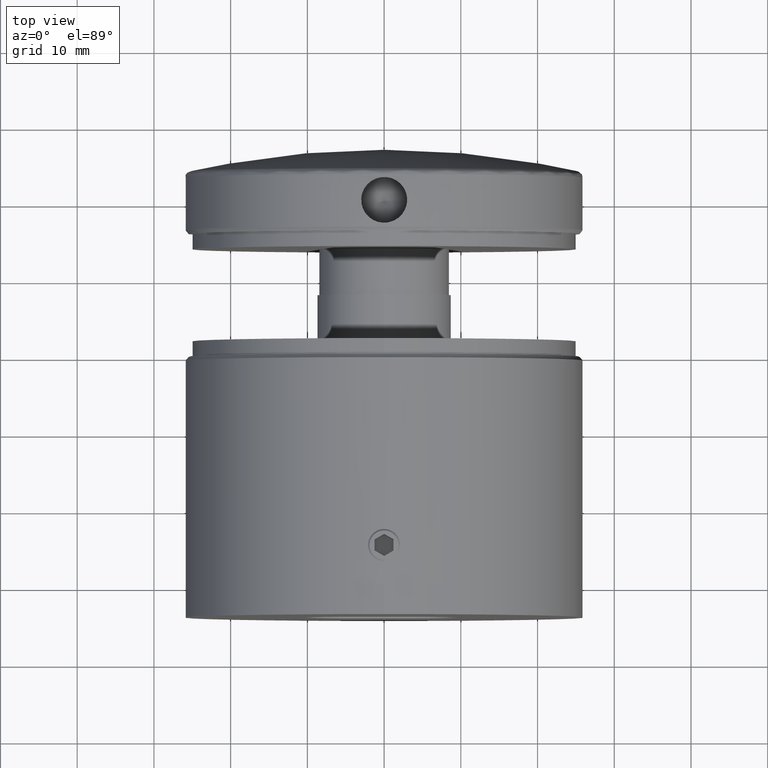
[diagram: clean part render]
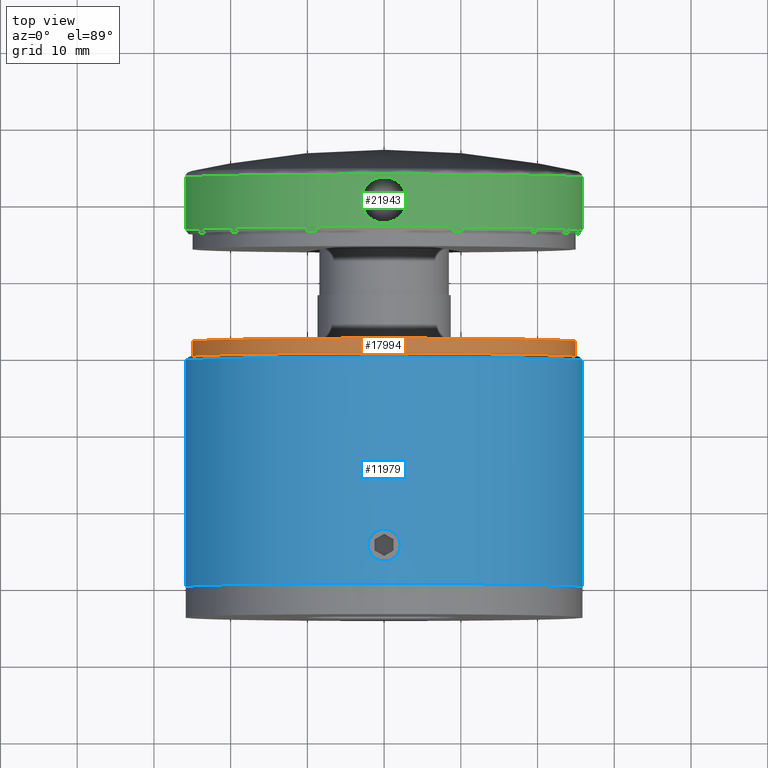
[diagram: same view with three faces highlighted in distinct colors, each labeled with its STEP entity id]
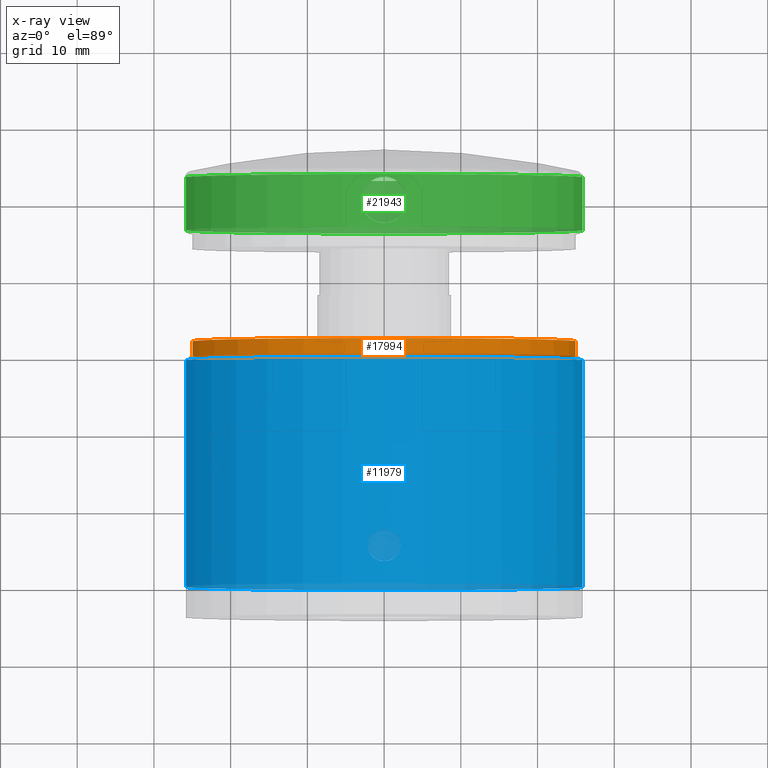
[diagram: x-ray of the same camera — body ghosted, the three highlighted faces saturated]
A machine part, top view with three faces highlighted in distinct colors.
The next image is the same camera in x-ray (body ghosted, the three faces saturated) — at least one of them is partly hidden behind the body in this view.
Their STEP definitions:

[orange] entity #17994 — the highlighted cylindrical surface (bore or boss wall) has radius 25 mm, axis along (-0, -1, -0).
#542 = ORIENTED_EDGE ( 'NONE', *, *, #3095, .F. ) ;
#943 = DIRECTION ( 'NONE',  ( 0.0000000000000000000, 1.000000000000000000, 0.0000000000000000000 ) ) ;
#1526 = AXIS2_PLACEMENT_3D ( 'NONE', #16479, #16559, #21999 ) ;
#1536 = DIRECTION ( 'NONE',  ( 0.0000000000000000000, 0.0000000000000000000, 1.000000000000000000 ) ) ;
#3095 = EDGE_CURVE ( 'NONE', #11665, #11665, #6065, .T. ) ;
#5273 = EDGE_LOOP ( 'NONE', ( #542 ) ) ;
#6065 = CIRCLE ( 'NONE', #11484, 25.00000000000000000 ) ;
#7245 = CARTESIAN_POINT ( 'NONE',  ( 0.0000000000000000000, 2.000000000000000000, 25.00000000000000000 ) ) ;
#8256 = CARTESIAN_POINT ( 'NONE',  ( 0.0000000000000000000, 2.000000000000000000, 0.0000000000000000000 ) ) ;
#9722 = EDGE_CURVE ( 'NONE', #18397, #18397, #16997, .T. ) ;
#10079 = DIRECTION ( 'NONE',  ( 0.0000000000000000000, 1.000000000000000000, 0.0000000000000000000 ) ) ;
#11484 = AXIS2_PLACEMENT_3D ( 'NONE', #8256, #10079, #1536 ) ;
#11665 = VERTEX_POINT ( 'NONE', #7245 ) ;
#13028 = DIRECTION ( 'NONE',  ( 0.0000000000000000000, 0.0000000000000000000, 1.000000000000000000 ) ) ;
#14742 = ORIENTED_EDGE ( 'NONE', *, *, #9722, .T. ) ;
#15211 = AXIS2_PLACEMENT_3D ( 'NONE', #21643, #943, #13028 ) ;
#16479 = CARTESIAN_POINT ( 'NONE',  ( 0.0000000000000000000, 2.000000000000000000, 0.0000000000000000000 ) ) ;
#16559 = DIRECTION ( 'NONE',  ( -0.0000000000000000000, -1.000000000000000000, -0.0000000000000000000 ) ) ;
#16997 = CIRCLE ( 'NONE', #15211, 25.00000000000000000 ) ;
#17994 = ADVANCED_FACE ( 'NONE', ( #18764, #21474 ), #18501, .T. ) ;
#18397 = VERTEX_POINT ( 'NONE', #19574 ) ;
#18501 = CYLINDRICAL_SURFACE ( 'NONE', #1526, 25.00000000000000000 ) ;
#18764 = FACE_OUTER_BOUND ( 'NONE', #5273, .T. ) ;
#19574 = CARTESIAN_POINT ( 'NONE',  ( 0.0000000000000000000, 0.0000000000000000000, 25.00000000000000000 ) ) ;
#19702 = EDGE_LOOP ( 'NONE', ( #14742 ) ) ;
#21474 = FACE_OUTER_BOUND ( 'NONE', #19702, .T. ) ;
#21643 = CARTESIAN_POINT ( 'NONE',  ( 0.0000000000000000000, 0.0000000000000000000, 0.0000000000000000000 ) ) ;
#21999 = DIRECTION ( 'NONE',  ( 0.0000000000000000000, 0.0000000000000000000, -1.000000000000000000 ) ) ;

[blue] entity #11979 — the highlighted cylindrical surface (bore or boss wall) has radius 26 mm, axis along (-0, -1, -0).
#62 = VERTEX_POINT ( 'NONE', #9843 ) ;
#746 = CARTESIAN_POINT ( 'NONE',  ( 0.5515874303148203800, 7.044642474720950200, 25.99537749868886000 ) ) ;
#821 = CARTESIAN_POINT ( 'NONE',  ( -2.100099286971191900, 4.726618426426298900, 25.91504549474712600 ) ) ;
#1050 = CARTESIAN_POINT ( 'NONE',  ( -1.389649238057018200, 3.419615088910952200, 25.96301712609206500 ) ) ;
#2244 = CARTESIAN_POINT ( 'NONE',  ( 1.887173869133903700, 5.931406873373773300, 25.93147448498230600 ) ) ;
#2536 = CARTESIAN_POINT ( 'NONE',  ( 0.0000000000000000000, 20.00000000000000000, 0.0000000000000000000 ) ) ;
#2554 = CARTESIAN_POINT ( 'NONE',  ( -0.6790218126945848400, 3.008054272391163900, 25.99144236514335300 ) ) ;
#3857 = CARTESIAN_POINT ( 'NONE',  ( 2.033000561372071400, 5.543727166053645100, 25.92040943783972700 ) ) ;
#4139 = CARTESIAN_POINT ( 'NONE',  ( 1.822668037246453000, 6.052002593627194400, 25.93614684694555500 ) ) ;
#4215 = CARTESIAN_POINT ( 'NONE',  ( 1.056914456920366600, 6.835141240740624000, 25.97973887134691000 ) ) ;
#4298 = CARTESIAN_POINT ( 'NONE',  ( 0.2734311670305149000, 2.913385292999100900, 25.99890881711472400 ) ) ;
#4376 = CARTESIAN_POINT ( 'NONE',  ( -0.2750556725704311200, 7.086433002506038500, 25.99889400044466500 ) ) ;
#4447 = CARTESIAN_POINT ( 'NONE',  ( -1.281745290530080100, 3.330877281822141700, 25.96863823481467300 ) ) ;
#4508 = CYLINDRICAL_SURFACE ( 'NONE', #6998, 25.99999999999999600 ) ;
#4526 = CARTESIAN_POINT ( 'NONE',  ( 1.886697760890792200, 4.067757889768828700, 25.93150866998944400 ) ) ;
#4837 = AXIS2_PLACEMENT_3D ( 'NONE', #15996, #5680, #12697 ) ;
#5680 = DIRECTION ( 'NONE',  ( -0.0000000000000000000, -1.000000000000000000, -0.0000000000000000000 ) ) ;
#5796 = CARTESIAN_POINT ( 'NONE',  ( 2.099999999999997000, 4.999999999999999100, 25.91505354036529600 ) ) ;
#5896 = CARTESIAN_POINT ( 'NONE',  ( 2.086375087508013600, 5.275262616186469500, 25.91616784368428800 ) ) ;
#5910 = EDGE_LOOP ( 'NONE', ( #15684 ) ) ;
#5968 = CARTESIAN_POINT ( 'NONE',  ( -1.836053107001190300, 3.944660372366392200, 25.93530218829718900 ) ) ;
#6042 = CARTESIAN_POINT ( 'NONE',  ( -1.821364900916784900, 6.054199029801260700, 25.93623799503714300 ) ) ;
#6185 = CARTESIAN_POINT ( 'NONE',  ( 1.580685245242186900, 3.610684475793076900, 25.95208780489046400 ) ) ;
#6311 = DIRECTION ( 'NONE',  ( 0.0000000000000000000, 0.0000000000000000000, -1.000000000000000000 ) ) ;
#6445 = CARTESIAN_POINT ( 'NONE',  ( 0.0000000000000000000, 0.0000000000000000000, -25.99999999999999600 ) ) ;
#6492 = EDGE_LOOP ( 'NONE', ( #21267 ) ) ;
#6775 = DIRECTION ( 'NONE',  ( -0.0000000000000000000, -1.000000000000000000, -0.0000000000000000000 ) ) ;
#6998 = AXIS2_PLACEMENT_3D ( 'NONE', #2536, #19726, #6311 ) ;
#7394 = B_SPLINE_CURVE_WITH_KNOTS ( 'NONE', 3,
 ( #21210, #17882, #5896, #3857, #14491, #2244, #4139, #17950, #7631, #19670, #4215, #746, #14712, #18110, #4376, #16281, #21516, #18255, #14791, #16355, #7858, #19748, #16435, #6042, #9449, #11392, #8003, #11171, #7932, #821, #7782, #5968, #12980, #1050, #4447, #19907, #12903, #2554, #16515, #21667, #14644, #13053, #4298, #19824, #14569, #11319, #18036, #14862, #9524, #6185, #13129, #21595, #4526, #19984, #9374, #11246 ),
 .UNSPECIFIED., .T., .F.,
 ( 4, 2, 2, 2, 2, 2, 2, 2, 2, 2, 2, 2, 2, 2, 2, 2, 2, 2, 2, 2, 2, 2, 2, 2, 2, 2, 2, 4 ),
 ( 0.0000000000000000000, 0.0004104668921315337500, 0.0008209337842630675000, 0.001231400676394601300, 0.001641867568526135000, 0.002462801352789200300, 0.003283735137052265700, 0.003694202029183798300, 0.004104668921315331000, 0.004515135813446864500, 0.004925602705578397200, 0.005336069597709930700, 0.005746536489841463400, 0.006157003381972996900, 0.006567470274104529600, 0.007388404058367594900, 0.008209337842630660300, 0.008619804734762193800, 0.009030271626893727300, 0.009440738519025257400, 0.009851205411156790900, 0.01026167230328832400, 0.01067213919541985500, 0.01108260608755138800, 0.01149307297968292000, 0.01190353987181445200, 0.01231400676394598500, 0.01313494054820905100 ),
 .UNSPECIFIED. ) ;
#7631 = CARTESIAN_POINT ( 'NONE',  ( 1.581614341408797300, 6.388252919398745200, 25.95203081882499400 ) ) ;
#7782 = CARTESIAN_POINT ( 'NONE',  ( -2.045140482374243200, 4.450242645582057400, 25.91965260217380900 ) ) ;
#7858 = CARTESIAN_POINT ( 'NONE',  ( -1.386172949092684000, 6.583584830614483100, 25.96320806522044600 ) ) ;
#7932 = CARTESIAN_POINT ( 'NONE',  ( -2.099950149348869000, 5.137833215250493500, 25.91505757996182900 ) ) ;
#8003 = CARTESIAN_POINT ( 'NONE',  ( -2.032362703583654000, 5.546201311504011000, 25.92045968014364000 ) ) ;
#8025 = FACE_OUTER_BOUND ( 'NONE', #5910, .T. ) ;
#8865 = FACE_BOUND ( 'NONE', #6492, .T. ) ;
#9374 = CARTESIAN_POINT ( 'NONE',  ( 2.099999999999997900, 4.722406654280078400, 25.91505354036531000 ) ) ;
#9449 = CARTESIAN_POINT ( 'NONE',  ( -1.887148706429960100, 5.931464451664375300, 25.93147635339588000 ) ) ;
#9524 = CARTESIAN_POINT ( 'NONE',  ( 1.386813373150778100, 3.417119038468505300, 25.96316960514107200 ) ) ;
#9843 = CARTESIAN_POINT ( 'NONE',  ( 0.0000000000000000000, 29.50000000000000000, -25.99999999999999300 ) ) ;
#10062 = VERTEX_POINT ( 'NONE', #6445 ) ;
#10784 = AXIS2_PLACEMENT_3D ( 'NONE', #17108, #6775, #20572 ) ;
#11171 = CARTESIAN_POINT ( 'NONE',  ( -2.086163109703135500, 5.277051459697118800, 25.91618512953988300 ) ) ;
#11246 = CARTESIAN_POINT ( 'NONE',  ( 2.099999999999997400, 4.999999999999999100, 25.91505354036530300 ) ) ;
#11319 = CARTESIAN_POINT ( 'NONE',  ( 0.9297566643219388200, 3.112005147232632200, 25.98368275802765500 ) ) ;
#11392 = CARTESIAN_POINT ( 'NONE',  ( -1.992610389370325500, 5.677096818090381800, 25.92358578482312800 ) ) ;
#11651 = EDGE_CURVE ( 'NONE', #14637, #14637, #7394, .T. ) ;
#11979 = ADVANCED_FACE ( 'NONE', ( #8865, #8025, #18018 ), #4508, .T. ) ;
#12697 = DIRECTION ( 'NONE',  ( 0.0000000000000000000, 0.0000000000000000000, -1.000000000000000000 ) ) ;
#12832 = CIRCLE ( 'NONE', #10784, 25.99999999999999300 ) ;
#12903 = CARTESIAN_POINT ( 'NONE',  ( -0.9330401142055890800, 3.113639867592257600, 25.98356370839009700 ) ) ;
#12980 = CARTESIAN_POINT ( 'NONE',  ( -1.679776207148330200, 3.710303220900370100, 25.94640408750757000 ) ) ;
#13053 = CARTESIAN_POINT ( 'NONE',  ( 0.1365899693063367100, 2.899865480402195100, 26.00001086503926100 ) ) ;
#13129 = CARTESIAN_POINT ( 'NONE',  ( 1.667657756521175000, 3.716275343818325400, 25.94657670989814900 ) ) ;
#13827 = ORIENTED_EDGE ( 'NONE', *, *, #16705, .F. ) ;
#14491 = CARTESIAN_POINT ( 'NONE',  ( 1.992599160042153800, 5.677120789452698300, 25.92358661074948100 ) ) ;
#14569 = CARTESIAN_POINT ( 'NONE',  ( 0.6751850539863092400, 3.006737056532522000, 25.99154366842317300 ) ) ;
#14637 = VERTEX_POINT ( 'NONE', #5796 ) ;
#14644 = CARTESIAN_POINT ( 'NONE',  ( -0.1406954558784135600, 2.900136526148288800, 25.99998897289323100 ) ) ;
#14712 = CARTESIAN_POINT ( 'NONE',  ( 0.2751650311658658300, 7.099851416639489300, 25.99998799903801900 ) ) ;
#14791 = CARTESIAN_POINT ( 'NONE',  ( -1.052589253394152300, 6.822297977980116300, 25.97893422021398300 ) ) ;
#14862 = CARTESIAN_POINT ( 'NONE',  ( 1.278680393590565100, 3.328537484212546400, 25.96878950722395300 ) ) ;
#15684 = ORIENTED_EDGE ( 'NONE', *, *, #18199, .T. ) ;
#15996 = CARTESIAN_POINT ( 'NONE',  ( 0.0000000000000000000, 0.0000000000000000000, 0.0000000000000000000 ) ) ;
#16281 = CARTESIAN_POINT ( 'NONE',  ( -0.5444280021912952800, 7.032844422819789700, 25.99464835345537800 ) ) ;
#16355 = CARTESIAN_POINT ( 'NONE',  ( -1.280108565136260700, 6.670340120567080300, 25.96871751581180000 ) ) ;
#16435 = CARTESIAN_POINT ( 'NONE',  ( -1.669243227214097600, 6.281535307795066600, 25.94647256345069800 ) ) ;
#16515 = CARTESIAN_POINT ( 'NONE',  ( -0.5455399143232699800, 2.967483908508076900, 25.99462266377991100 ) ) ;
#16705 = EDGE_CURVE ( 'NONE', #10062, #10062, #18810, .T. ) ;
#17108 = CARTESIAN_POINT ( 'NONE',  ( 0.0000000000000000000, 29.50000000000000000, 0.0000000000000000000 ) ) ;
#17882 = CARTESIAN_POINT ( 'NONE',  ( 2.099999999999997000, 5.138796672859960800, 25.91505354036530000 ) ) ;
#17950 = CARTESIAN_POINT ( 'NONE',  ( 1.670277411755914700, 6.280234977953711900, 25.94640640643906700 ) ) ;
#18003 = EDGE_LOOP ( 'NONE', ( #13827 ) ) ;
#18018 = FACE_OUTER_BOUND ( 'NONE', #18003, .T. ) ;
#18036 = CARTESIAN_POINT ( 'NONE',  ( 1.050418834901880400, 3.176423634196027000, 25.97902369779784200 ) ) ;
#18110 = CARTESIAN_POINT ( 'NONE',  ( -0.1358780624334420800, 7.100073830543624200, 26.00000596323533500 ) ) ;
#18199 = EDGE_CURVE ( 'NONE', #62, #62, #12832, .T. ) ;
#18255 = CARTESIAN_POINT ( 'NONE',  ( -0.9296740769087523700, 6.888025485988405800, 25.98368508371377700 ) ) ;
#18810 = CIRCLE ( 'NONE', #4837, 25.99999999999999600 ) ;
#19670 = CARTESIAN_POINT ( 'NONE',  ( 1.291111679411652800, 6.678699199965065800, 25.96864765088966800 ) ) ;
#19726 = DIRECTION ( 'NONE',  ( -0.0000000000000000000, -1.000000000000000000, -0.0000000000000000000 ) ) ;
#19748 = CARTESIAN_POINT ( 'NONE',  ( -1.582305965105272400, 6.387632585860130200, 25.95199330139241700 ) ) ;
#19824 = CARTESIAN_POINT ( 'NONE',  ( 0.5419072552833817900, 2.966514798370207400, 25.99469870589812000 ) ) ;
#19907 = CARTESIAN_POINT ( 'NONE',  ( -1.053565934561727400, 3.178231502175824700, 25.97889608089622000 ) ) ;
#19984 = CARTESIAN_POINT ( 'NONE',  ( 2.044160095852805400, 4.446624291572655700, 25.91973168983960500 ) ) ;
#20572 = DIRECTION ( 'NONE',  ( 0.0000000000000000000, 0.0000000000000000000, -1.000000000000000000 ) ) ;
#21210 = CARTESIAN_POINT ( 'NONE',  ( 2.099999999999997400, 4.999999999999999100, 25.91505354036530300 ) ) ;
#21267 = ORIENTED_EDGE ( 'NONE', *, *, #11651, .F. ) ;
#21516 = CARTESIAN_POINT ( 'NONE',  ( -0.6753593128673861500, 6.993194401843729800, 25.99153851193517200 ) ) ;
#21595 = CARTESIAN_POINT ( 'NONE',  ( 1.821263503757339700, 3.945471368024777300, 25.93624731154056600 ) ) ;
#21667 = CARTESIAN_POINT ( 'NONE',  ( -0.2770871598587642500, 2.913865256956097700, 25.99887005114377600 ) ) ;

[green] entity #21943 — the highlighted cylindrical surface (bore or boss wall) has radius 26 mm, axis along (-0, -1, -0).
#87 = DIRECTION ( 'NONE',  ( -0.0000000000000000000, -1.000000000000000000, -0.0000000000000000000 ) ) ;
#319 = ORIENTED_EDGE ( 'NONE', *, *, #11515, .F. ) ;
#449 = DIRECTION ( 'NONE',  ( -0.0000000000000000000, -1.000000000000000000, -0.0000000000000000000 ) ) ;
#595 = CIRCLE ( 'NONE', #15567, 25.99999999999999600 ) ;
#1210 = CARTESIAN_POINT ( 'NONE',  ( 1.504046466543745400, 9.396782041410565600, 25.95698036821285700 ) ) ;
#1288 = CARTESIAN_POINT ( 'NONE',  ( 1.831915627833455600, 9.616098859863344100, 25.93590312176944900 ) ) ;
#1370 = CARTESIAN_POINT ( 'NONE',  ( -2.384525331870829500, 10.16909938193571400, 25.89065376688521900 ) ) ;
#1452 = CARTESIAN_POINT ( 'NONE',  ( -0.9701622282910408200, 14.84559983677698400, 25.98252887103857500 ) ) ;
#1522 = CARTESIAN_POINT ( 'NONE',  ( -2.385483644065929300, 13.82984876575435300, 25.89056907961826300 ) ) ;
#1677 = CARTESIAN_POINT ( 'NONE',  ( -2.695847567316084400, 10.66918899084642500, 25.85997182781259000 ) ) ;
#1682 = ORIENTED_EDGE ( 'NONE', *, *, #7896, .T. ) ;
#2102 = AXIS2_PLACEMENT_3D ( 'NONE', #12323, #7416, #10952 ) ;
#2298 = CARTESIAN_POINT ( 'NONE',  ( 0.0000000000000000000, 8.500000000000000000, -26.00000000000000000 ) ) ;
#2951 = CARTESIAN_POINT ( 'NONE',  ( 1.329678934057944200, 9.303684355303021300, 25.96660511796631700 ) ) ;
#3032 = CARTESIAN_POINT ( 'NONE',  ( -0.1941723281477192600, 8.999892428313810200, 26.00001241211576900 ) ) ;
#3107 = CARTESIAN_POINT ( 'NONE',  ( 0.7744147086170432000, 14.90491534289618200, 25.98917292353332100 ) ) ;
#3194 = CARTESIAN_POINT ( 'NONE',  ( -2.261499722814582600, 13.98087377345776100, 25.90183065763340800 ) ) ;
#3270 = CARTESIAN_POINT ( 'NONE',  ( -1.503943005669261500, 9.396862869047128100, 25.95697701017397900 ) ) ;
#3349 = CARTESIAN_POINT ( 'NONE',  ( -2.980222010311326800, 11.60407909247042300, 25.82866189750345500 ) ) ;
#3425 = CARTESIAN_POINT ( 'NONE',  ( -2.846869066070606600, 12.96618901026842300, 25.84378029847802300 ) ) ;
#4692 = CARTESIAN_POINT ( 'NONE',  ( 0.7795573863352983600, 9.096333107480285600, 25.98903255766746100 ) ) ;
#4852 = CARTESIAN_POINT ( 'NONE',  ( -2.999926885587592000, 11.80302556514894800, 25.82635163329338100 ) ) ;
#4932 = CARTESIAN_POINT ( 'NONE',  ( 2.999999999999998200, 12.00000000000000400, 25.82634314028990700 ) ) ;
#5004 = CARTESIAN_POINT ( 'NONE',  ( -1.985208033414806100, 14.25769594204546600, 25.92447032201571100 ) ) ;
#5155 = CARTESIAN_POINT ( 'NONE',  ( -1.505373951746086000, 14.60235255640465400, 25.95689653493614600 ) ) ;
#6206 = CARTESIAN_POINT ( 'NONE',  ( 2.999999999999997800, 11.80162860876600200, 25.82634314028990700 ) ) ;
#6511 = CARTESIAN_POINT ( 'NONE',  ( 1.826971693114298500, 14.38759081562333200, 25.93624649503413700 ) ) ;
#6593 = CARTESIAN_POINT ( 'NONE',  ( -1.328482013767581000, 9.303001196752777700, 25.96667512040692900 ) ) ;
#6747 = CARTESIAN_POINT ( 'NONE',  ( 2.382280341642609900, 13.83402231236238000, 25.89086534581342400 ) ) ;
#6810 = DIRECTION ( 'NONE',  ( 0.0000000000000000000, 0.0000000000000000000, -1.000000000000000000 ) ) ;
#7346 = VERTEX_POINT ( 'NONE', #13303 ) ;
#7368 = CYLINDRICAL_SURFACE ( 'NONE', #2102, 25.99999999999999600 ) ;
#7416 = DIRECTION ( 'NONE',  ( -0.0000000000000000000, -1.000000000000000000, -0.0000000000000000000 ) ) ;
#7877 = CARTESIAN_POINT ( 'NONE',  ( -0.3931071775928753300, 9.019401675169609300, 25.99774064185299200 ) ) ;
#7896 = EDGE_CURVE ( 'NONE', #13267, #13267, #10987, .T. ) ;
#8094 = CARTESIAN_POINT ( 'NONE',  ( 2.999999999999998200, 12.00000000000000400, 25.82634314028990700 ) ) ;
#8169 = CARTESIAN_POINT ( 'NONE',  ( 2.846458888054149000, 11.03236006772277000, 25.84382730467127200 ) ) ;
#8242 = CARTESIAN_POINT ( 'NONE',  ( -0.7796045846363183200, 14.90352505264683300, 25.98901706987855300 ) ) ;
#8323 = CARTESIAN_POINT ( 'NONE',  ( -1.828850462055285200, 9.613899944619420900, 25.93611007954820700 ) ) ;
#8489 = CARTESIAN_POINT ( 'NONE',  ( 0.9650574209274815900, 14.84733694668936200, 25.98272007820417100 ) ) ;
#8562 = CARTESIAN_POINT ( 'NONE',  ( 2.845128384431394600, 12.97129198230969000, 25.84397286354044700 ) ) ;
#9835 = CARTESIAN_POINT ( 'NONE',  ( 2.603667476540609400, 10.49689336991925400, 25.86953563173866400 ) ) ;
#9915 = CARTESIAN_POINT ( 'NONE',  ( 0.9687707735393102900, 9.154012067514830900, 25.98257320991144300 ) ) ;
#9992 = CARTESIAN_POINT ( 'NONE',  ( -0.9650708797723882600, 9.152667001800409700, 25.98271963183761500 ) ) ;
#10071 = CARTESIAN_POINT ( 'NONE',  ( 2.980516047926730300, 12.39451206010617500, 25.82862846835401200 ) ) ;
#10221 = CARTESIAN_POINT ( 'NONE',  ( -1.831066051039929900, 14.38444682875305200, 25.93595623023574200 ) ) ;
#10300 = CARTESIAN_POINT ( 'NONE',  ( -2.903294483696322400, 11.21938630763890300, 25.83742208091259600 ) ) ;
#10371 = FACE_OUTER_BOUND ( 'NONE', #16611, .T. ) ;
#10643 = CARTESIAN_POINT ( 'NONE',  ( 2.999999999999998200, 12.00000000000000000, 25.82634314028991100 ) ) ;
#10781 = ORIENTED_EDGE ( 'NONE', *, *, #22323, .T. ) ;
#10881 = AXIS2_PLACEMENT_3D ( 'NONE', #21071, #449, #14339 ) ;
#10952 = DIRECTION ( 'NONE',  ( 0.0000000000000000000, 0.0000000000000000000, -1.000000000000000000 ) ) ;
#10987 = B_SPLINE_CURVE_WITH_KNOTS ( 'NONE', 3,
 ( #8094, #6206, #19929, #11340, #8169, #21687, #9835, #21901, #11552, #18497, #1288, #1210, #2951, #9915, #4692, #21977, #13377, #3032, #7877, #13771, #9992, #6593, #3270, #8323, #22362, #15331, #1370, #11711, #1677, #13537, #10300, #3349, #4852, #12019, #20547, #11796, #3425, #15481, #16923, #1522, #3194, #5004, #10221, #5155, #13616, #1452, #8242, #18651, #13693, #17088, #20388, #3107, #8489, #22289, #15179, #6511, #18577, #15409, #6747, #20311, #15252, #8562, #11952, #10071, #22134, #4932 ),
 .UNSPECIFIED., .T., .F.,
 ( 4, 2, 2, 2, 2, 2, 2, 2, 2, 2, 2, 2, 2, 2, 2, 2, 2, 2, 2, 2, 2, 2, 2, 2, 2, 2, 2, 2, 2, 2, 2, 2, 4 ),
 ( 0.0000000000000000000, 0.0005866289597237314300, 0.001173257919447462900, 0.001759886879171194200, 0.002346515838894925700, 0.002933144798618657300, 0.003519773758342388400, 0.004106402718066119900, 0.004693031677789851400, 0.005279660637513583000, 0.005866289597237314500, 0.006452918556961046100, 0.007039547516684776700, 0.007626176476408508300, 0.008212805436132239800, 0.008799434395855971300, 0.009386063355579702900, 0.009972692315303434400, 0.01055932127502716600, 0.01114595023475089700, 0.01173257919447462900, 0.01231920815419836100, 0.01290583711392209200, 0.01349246607364582400, 0.01407909503336955300, 0.01466572399309328500, 0.01525235295281701700, 0.01583898191254075000, 0.01642561087226448000, 0.01701223983198821300, 0.01759886879171194300, 0.01818549775143567600, 0.01877212671115940600 ),
 .UNSPECIFIED. ) ;
#11340 = CARTESIAN_POINT ( 'NONE',  ( 2.904216902360977800, 11.22297140875059900, 25.83731794412976500 ) ) ;
#11515 = EDGE_CURVE ( 'NONE', #21915, #21915, #15339, .T. ) ;
#11552 = CARTESIAN_POINT ( 'NONE',  ( 2.259367191999813100, 10.01669791220003300, 25.90201740359187700 ) ) ;
#11711 = CARTESIAN_POINT ( 'NONE',  ( -2.601817656857965000, 10.49377856474421700, 25.86972088012399200 ) ) ;
#11796 = CARTESIAN_POINT ( 'NONE',  ( -2.904394120158766000, 12.77683473340630900, 25.83729836467457000 ) ) ;
#11952 = CARTESIAN_POINT ( 'NONE',  ( 2.902928602409402500, 12.78238175261913400, 25.83746369126679500 ) ) ;
#12019 = CARTESIAN_POINT ( 'NONE',  ( -3.000072698718975400, 12.19474097991231800, 25.82633469557358600 ) ) ;
#12323 = CARTESIAN_POINT ( 'NONE',  ( 0.0000000000000000000, 0.0000000000000000000, 0.0000000000000000000 ) ) ;
#12771 = FACE_BOUND ( 'NONE', #17841, .T. ) ;
#13267 = VERTEX_POINT ( 'NONE', #10643 ) ;
#13303 = CARTESIAN_POINT ( 'NONE',  ( 0.0000000000000000000, 15.36369618043120500, -25.99999999999999600 ) ) ;
#13377 = CARTESIAN_POINT ( 'NONE',  ( 0.1974822290173422800, 9.000108484639907800, 25.99998748254342100 ) ) ;
#13537 = CARTESIAN_POINT ( 'NONE',  ( -2.846471190645790500, 11.03239790765421300, 25.84382593197624100 ) ) ;
#13616 = CARTESIAN_POINT ( 'NONE',  ( -1.333240681001386400, 14.69464700226037500, 25.96643006980510600 ) ) ;
#13693 = CARTESIAN_POINT ( 'NONE',  ( -0.2011044140179882600, 14.99981532888682500, 25.99997869180358400 ) ) ;
#13771 = CARTESIAN_POINT ( 'NONE',  ( -0.7779860760478930500, 9.095996333932689000, 25.98907057590951900 ) ) ;
#13874 = FACE_OUTER_BOUND ( 'NONE', #19713, .T. ) ;
#14339 = DIRECTION ( 'NONE',  ( 0.0000000000000000000, 0.0000000000000000000, -1.000000000000000000 ) ) ;
#15179 = CARTESIAN_POINT ( 'NONE',  ( 1.500791135884891100, 14.60500315484245700, 25.95716343873230900 ) ) ;
#15252 = CARTESIAN_POINT ( 'NONE',  ( 2.695137482997141300, 13.33206515851895400, 25.86004491185303800 ) ) ;
#15331 = CARTESIAN_POINT ( 'NONE',  ( -2.260506445678778700, 10.01775295283131100, 25.90192761446528600 ) ) ;
#15339 = CIRCLE ( 'NONE', #10881, 26.00000000000000000 ) ;
#15409 = CARTESIAN_POINT ( 'NONE',  ( 2.258024676797181200, 13.98483070465201400, 25.90213498332273200 ) ) ;
#15481 = CARTESIAN_POINT ( 'NONE',  ( -2.697477801571571000, 13.32732746258856200, 25.85980002059915300 ) ) ;
#15567 = AXIS2_PLACEMENT_3D ( 'NONE', #17142, #87, #6810 ) ;
#16611 = EDGE_LOOP ( 'NONE', ( #319 ) ) ;
#16923 = CARTESIAN_POINT ( 'NONE',  ( -2.604463692874475500, 13.50188135155126500, 25.86945821533744500 ) ) ;
#17088 = CARTESIAN_POINT ( 'NONE',  ( 0.1955564443005259300, 15.00018210611529500, 26.00002101223516600 ) ) ;
#17142 = CARTESIAN_POINT ( 'NONE',  ( 0.0000000000000000000, 15.36369618043120500, 0.0000000000000000000 ) ) ;
#17841 = EDGE_LOOP ( 'NONE', ( #1682 ) ) ;
#18497 = CARTESIAN_POINT ( 'NONE',  ( 1.982834401776012000, 9.740222352776619600, 25.92465261906889400 ) ) ;
#18577 = CARTESIAN_POINT ( 'NONE',  ( 1.981300663533632500, 14.26112274055072100, 25.92477039080535000 ) ) ;
#18651 = CARTESIAN_POINT ( 'NONE',  ( -0.3960800891403077900, 14.98016133837085600, 25.99769051530946100 ) ) ;
#19713 = EDGE_LOOP ( 'NONE', ( #10781 ) ) ;
#19929 = CARTESIAN_POINT ( 'NONE',  ( 2.980518406029754300, 11.60660544119665600, 25.82862722626442000 ) ) ;
#20311 = CARTESIAN_POINT ( 'NONE',  ( 2.601881734802040700, 13.50635616854826400, 25.86971935331580500 ) ) ;
#20388 = CARTESIAN_POINT ( 'NONE',  ( 0.3907017863126575600, 14.98087292659182500, 25.99777258736625600 ) ) ;
#20547 = CARTESIAN_POINT ( 'NONE',  ( -2.981150286349718100, 12.38951300162672100, 25.82855464327465000 ) ) ;
#21071 = CARTESIAN_POINT ( 'NONE',  ( 0.0000000000000000000, 8.500000000000000000, 0.0000000000000000000 ) ) ;
#21687 = CARTESIAN_POINT ( 'NONE',  ( 2.695823260802125100, 10.66913855475554700, 25.85997437936805500 ) ) ;
#21901 = CARTESIAN_POINT ( 'NONE',  ( 2.385970178955810100, 10.17091274813867400, 25.89052151725268700 ) ) ;
#21915 = VERTEX_POINT ( 'NONE', #2298 ) ;
#21943 = ADVANCED_FACE ( 'NONE', ( #12771, #10371, #13874 ), #7368, .T. ) ;
#21977 = CARTESIAN_POINT ( 'NONE',  ( 0.3922386663974057300, 9.019204809134347300, 25.99776282357140300 ) ) ;
#22134 = CARTESIAN_POINT ( 'NONE',  ( 2.999999999999998200, 12.19837139123400300, 25.82634314028991100 ) ) ;
#22289 = CARTESIAN_POINT ( 'NONE',  ( 1.328453288779688900, 14.69701230497748400, 25.96667653642898400 ) ) ;
#22323 = EDGE_CURVE ( 'NONE', #7346, #7346, #595, .T. ) ;
#22362 = CARTESIAN_POINT ( 'NONE',  ( -1.980419221218368000, 9.737892032816926500, 25.92484683164365200 ) ) ;